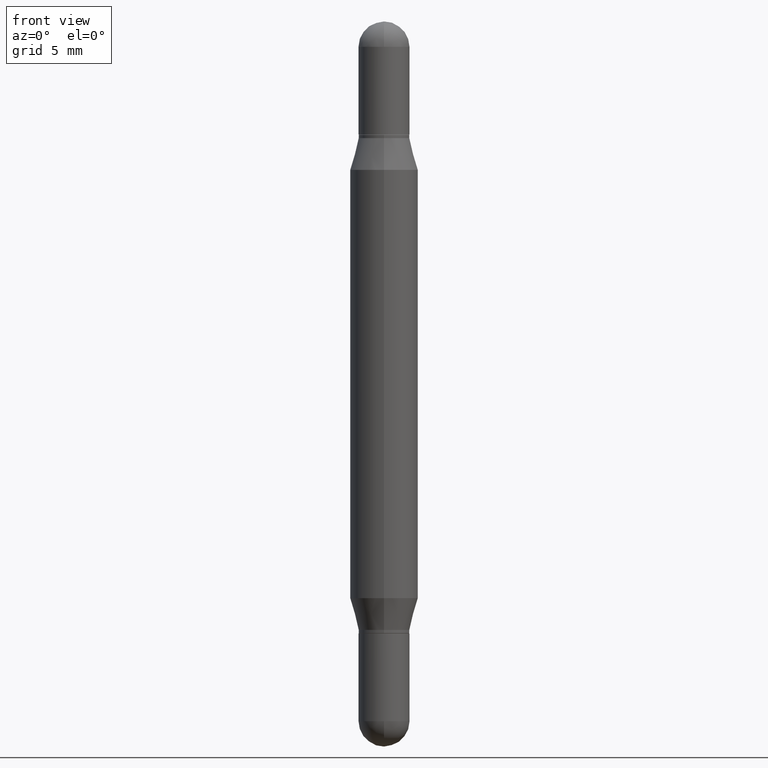
[diagram: clean part render]
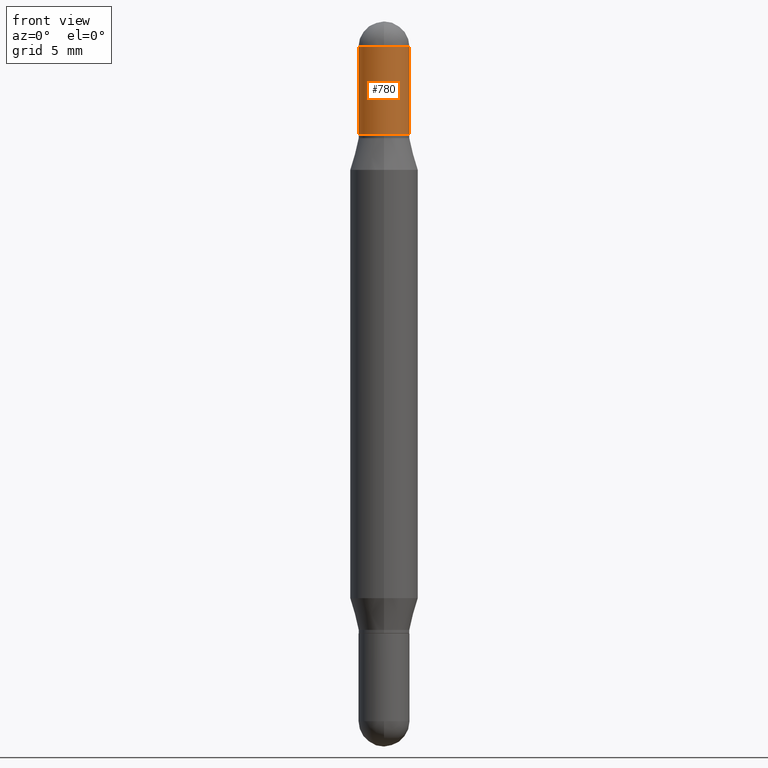
[diagram: same view with one face highlighted and labeled with its STEP entity id]
A machine part, front view. The second image highlights one B-rep face of the part: STEP entity #780.
In plain terms, the highlighted cylindrical surface (edge-blend (fillet) strip) has radius 1.7856 mm, axis along (-0, -0, -1).
Its self-contained STEP definition (entity closure, byte-faithful):
#2 = ORIENTED_EDGE ( 'NONE', *, *, #990, .F. ) ;
#10 = DIRECTION ( 'NONE',  ( -2.445468806185136877E-29, -3.479614466977828648E-15, -1.000000000000000000 ) ) ;
#32 = CYLINDRICAL_SURFACE ( 'NONE', #311, 0.07030000000000004301 ) ;
#50 = VERTEX_POINT ( 'NONE', #489 ) ;
#54 = CIRCLE ( 'NONE', #1068, 0.07030000000000004301 ) ;
#57 = ORIENTED_EDGE ( 'NONE', *, *, #305, .T. ) ;
#75 = DIRECTION ( 'NONE',  ( 1.000000000000000000, -6.982962677686266711E-15, 0.000000000000000000 ) ) ;
#128 = CARTESIAN_POINT ( 'NONE',  ( 4.719021155295457704E-29, -2.564837688938590811E-16, -0.07030000000000007077 ) ) ;
#181 = CARTESIAN_POINT ( 'NONE',  ( 0.000000000000000000, -6.971095805820973837E-15, -2.000000000000000000 ) ) ;
#205 = DIRECTION ( 'NONE',  ( 1.000000000000000000, -6.982962677686261189E-15, 0.000000000000000000 ) ) ;
#217 = EDGE_CURVE ( 'NONE', #1107, #50, #1117, .T. ) ;
#220 = CARTESIAN_POINT ( 'NONE',  ( -0.07030000000000004301, -1.947021679847895810E-16, -0.07030000000000007077 ) ) ;
#223 = CARTESIAN_POINT ( 'NONE',  ( 4.127951344840510809E-29, -1.097506585562398841E-15, -0.3119999999999998330 ) ) ;
#235 = LINE ( 'NONE', #571, #930 ) ;
#258 = AXIS2_PLACEMENT_3D ( 'NONE', #223, #781, #75 ) ;
#268 = VERTEX_POINT ( 'NONE', #774 ) ;
#305 = EDGE_CURVE ( 'NONE', #50, #615, #684, .T. ) ;
#311 = AXIS2_PLACEMENT_3D ( 'NONE', #181, #991, #205 ) ;
#320 = VERTEX_POINT ( 'NONE', #949 ) ;
#337 = CARTESIAN_POINT ( 'NONE',  ( 0.07030000000000005689, -1.588408861803743789E-15, -0.3119999999999998330 ) ) ;
#348 = ORIENTED_EDGE ( 'NONE', *, *, #217, .T. ) ;
#438 = VECTOR ( 'NONE', #10, 39.37007874015748143 ) ;
#489 = CARTESIAN_POINT ( 'NONE',  ( -0.07030000000000007077, -1.947021679847897782E-16, -0.3119999999999998330 ) ) ;
#555 = DIRECTION ( 'NONE',  ( 2.445468806185136597E-29, 3.479614466977828254E-15, 1.000000000000000000 ) ) ;
#571 = CARTESIAN_POINT ( 'NONE',  ( 0.07030000000000004301, -7.461998082062317995E-15, -2.000000000000000000 ) ) ;
#585 = EDGE_CURVE ( 'NONE', #268, #320, #54, .T. ) ;
#615 = VERTEX_POINT ( 'NONE', #337 ) ;
#646 = FACE_OUTER_BOUND ( 'NONE', #848, .T. ) ;
#660 = DIRECTION ( 'NONE',  ( -2.445468806185136877E-29, -3.479614466977828648E-15, -1.000000000000000000 ) ) ;
#684 = CIRCLE ( 'NONE', #258, 0.07030000000000005689 ) ;
#774 = CARTESIAN_POINT ( 'NONE',  ( -4.822930092432915309E-16, -0.07030000000000026505, -0.07029999999999982097 ) ) ;
#780 = ADVANCED_FACE ( 'NONE', ( #646 ), #32, .T. ) ;
#781 = DIRECTION ( 'NONE',  ( 2.445468806185136597E-29, 3.479614466977828254E-15, 1.000000000000000000 ) ) ;
#801 = ORIENTED_EDGE ( 'NONE', *, *, #585, .F. ) ;
#845 = DIRECTION ( 'NONE',  ( 1.000000000000000000, -6.982962677686268288E-15, 0.000000000000000000 ) ) ;
#848 = EDGE_LOOP ( 'NONE', ( #1027, #348, #57, #2, #801 ) ) ;
#869 = EDGE_CURVE ( 'NONE', #1107, #268, #1047, .T. ) ;
#930 = VECTOR ( 'NONE', #660, 39.37007874015748143 ) ;
#949 = CARTESIAN_POINT ( 'NONE',  ( 0.07030000000000004301, -1.167897453469473342E-15, -0.07030000000000007077 ) ) ;
#990 = EDGE_CURVE ( 'NONE', #320, #615, #235, .T. ) ;
#991 = DIRECTION ( 'NONE',  ( -2.445468806185136597E-29, -3.479614466977828254E-15, -1.000000000000000000 ) ) ;
#1004 = DIRECTION ( 'NONE',  ( 1.000000000000000000, -6.982962677686268288E-15, 0.000000000000000000 ) ) ;
#1006 = DIRECTION ( 'NONE',  ( 2.445468806185136597E-29, 3.479614466977828254E-15, 1.000000000000000000 ) ) ;
#1027 = ORIENTED_EDGE ( 'NONE', *, *, #869, .F. ) ;
#1037 = CARTESIAN_POINT ( 'NONE',  ( -0.07030000000000004301, -6.488802796577634580E-15, -2.000000000000000000 ) ) ;
#1047 = CIRCLE ( 'NONE', #1101, 0.07030000000000004301 ) ;
#1063 = CARTESIAN_POINT ( 'NONE',  ( 4.719021155295457704E-29, -2.564837688938590811E-16, -0.07030000000000007077 ) ) ;
#1068 = AXIS2_PLACEMENT_3D ( 'NONE', #128, #1006, #845 ) ;
#1101 = AXIS2_PLACEMENT_3D ( 'NONE', #1063, #555, #1004 ) ;
#1107 = VERTEX_POINT ( 'NONE', #220 ) ;
#1117 = LINE ( 'NONE', #1037, #438 ) ;